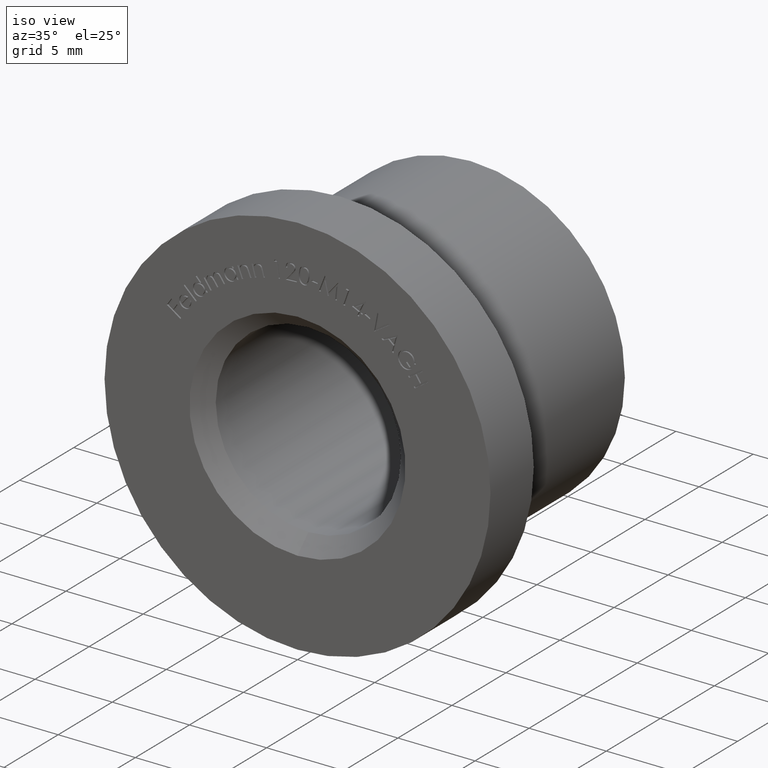
[diagram: clean part render]
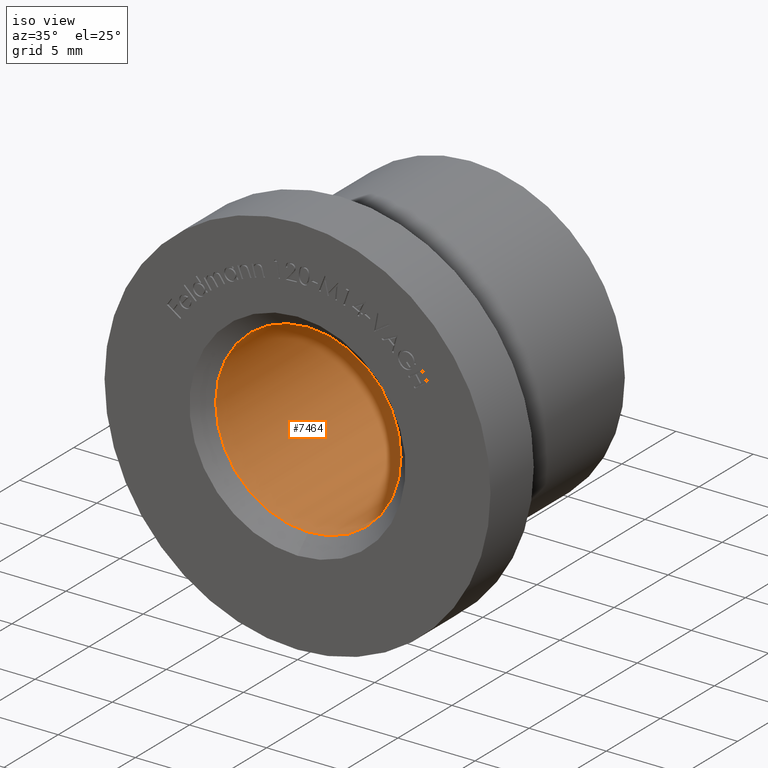
[diagram: same view with one face highlighted and labeled with its STEP entity id]
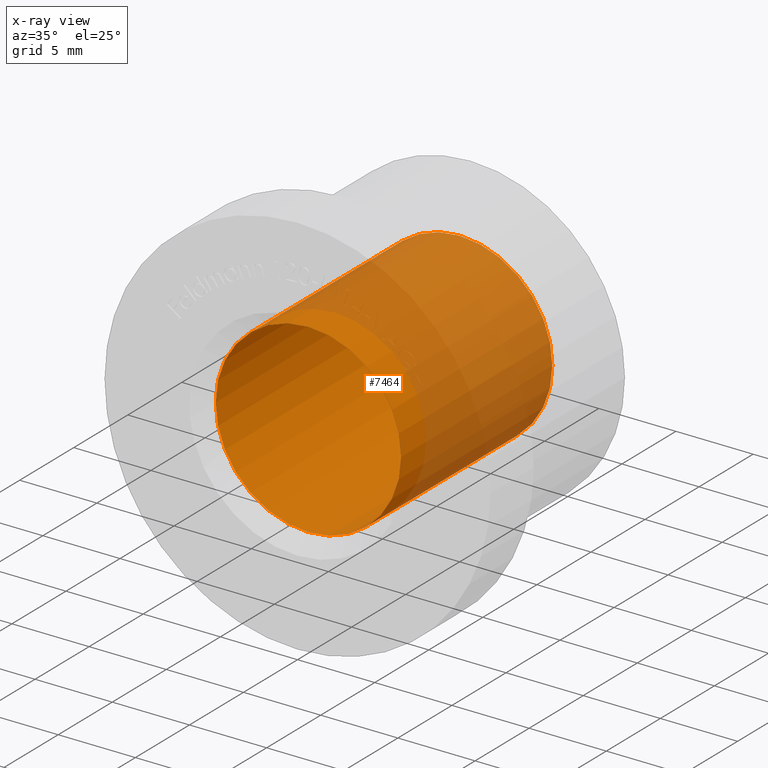
[diagram: x-ray of the same camera — body ghosted, the highlighted face saturated]
A machine part, iso view. The second image highlights one B-rep face of the part: STEP entity #7464.
The next image is the same camera in x-ray: the body ghosted, the highlighted face saturated — about 48% of this face is hidden behind the body in this view.
In plain terms, the highlighted cylindrical surface (bore or boss wall) has radius 6 mm, axis along (-0, 1, -0).
Its self-contained STEP definition (entity closure, byte-faithful):
#503 = AXIS2_PLACEMENT_3D ( 'NONE', #2815, #9134, #1155 ) ;
#1155 = DIRECTION ( 'NONE',  ( 0.0000000000000000000, 0.0000000000000000000, 1.000000000000000000 ) ) ;
#1371 = DIRECTION ( 'NONE',  ( 0.0000000000000000000, 0.0000000000000000000, 1.000000000000000000 ) ) ;
#2336 = VERTEX_POINT ( 'NONE', #4314 ) ;
#2449 = CYLINDRICAL_SURFACE ( 'NONE', #8583, 5.999999999999996400 ) ;
#2720 = CIRCLE ( 'NONE', #503, 5.999999999999996400 ) ;
#2815 = CARTESIAN_POINT ( 'NONE',  ( 0.0000000000000000000, 14.99999999999999800, 0.0000000000000000000 ) ) ;
#4117 = ORIENTED_EDGE ( 'NONE', *, *, #11376, .T. ) ;
#4314 = CARTESIAN_POINT ( 'NONE',  ( 0.0000000000000000000, 1.000000000000002700, -5.999999999999996400 ) ) ;
#4321 = DIRECTION ( 'NONE',  ( 0.0000000000000000000, -1.000000000000000000, 0.0000000000000000000 ) ) ;
#4611 = ORIENTED_EDGE ( 'NONE', *, *, #6500, .T. ) ;
#5034 = CIRCLE ( 'NONE', #8885, 5.999999999999996400 ) ;
#5464 = EDGE_LOOP ( 'NONE', ( #4611 ) ) ;
#5869 = DIRECTION ( 'NONE',  ( -0.0000000000000000000, 1.000000000000000000, -0.0000000000000000000 ) ) ;
#6500 = EDGE_CURVE ( 'NONE', #7249, #7249, #2720, .T. ) ;
#6691 = FACE_OUTER_BOUND ( 'NONE', #5464, .T. ) ;
#7249 = VERTEX_POINT ( 'NONE', #8705 ) ;
#7464 = ADVANCED_FACE ( 'NONE', ( #6691, #9914 ), #2449, .F. ) ;
#8583 = AXIS2_PLACEMENT_3D ( 'NONE', #11135, #5869, #1371 ) ;
#8705 = CARTESIAN_POINT ( 'NONE',  ( 0.0000000000000000000, 14.99999999999999800, 5.999999999999996400 ) ) ;
#8741 = CARTESIAN_POINT ( 'NONE',  ( 0.0000000000000000000, 1.000000000000002700, 0.0000000000000000000 ) ) ;
#8834 = EDGE_LOOP ( 'NONE', ( #4117 ) ) ;
#8885 = AXIS2_PLACEMENT_3D ( 'NONE', #8741, #4321, #10572 ) ;
#9134 = DIRECTION ( 'NONE',  ( 0.0000000000000000000, 1.000000000000000000, 0.0000000000000000000 ) ) ;
#9914 = FACE_OUTER_BOUND ( 'NONE', #8834, .T. ) ;
#10572 = DIRECTION ( 'NONE',  ( 0.0000000000000000000, 0.0000000000000000000, -1.000000000000000000 ) ) ;
#11135 = CARTESIAN_POINT ( 'NONE',  ( 0.0000000000000000000, 16.00000000000000000, 0.0000000000000000000 ) ) ;
#11376 = EDGE_CURVE ( 'NONE', #2336, #2336, #5034, .T. ) ;